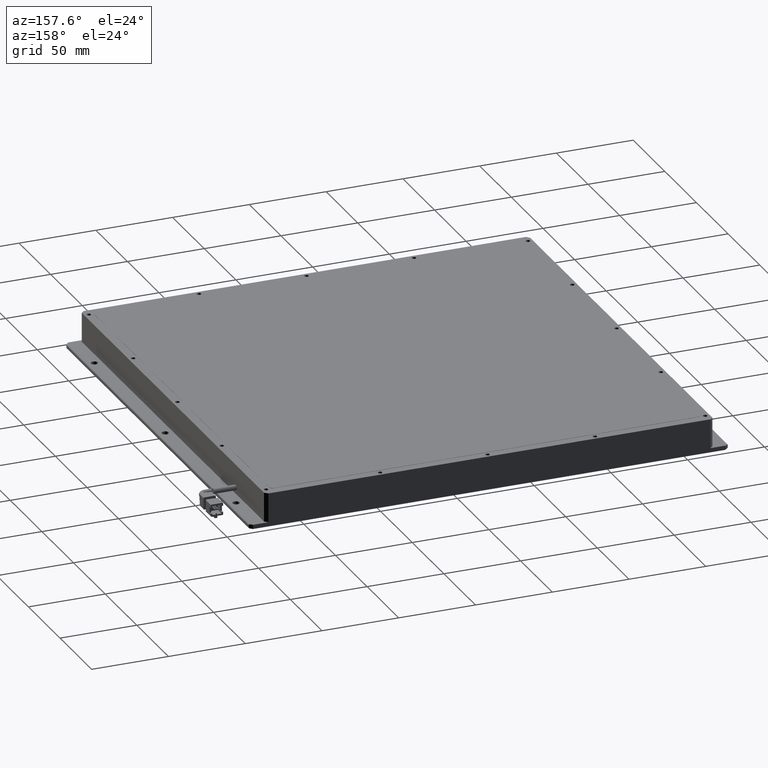
[diagram: clean part render]
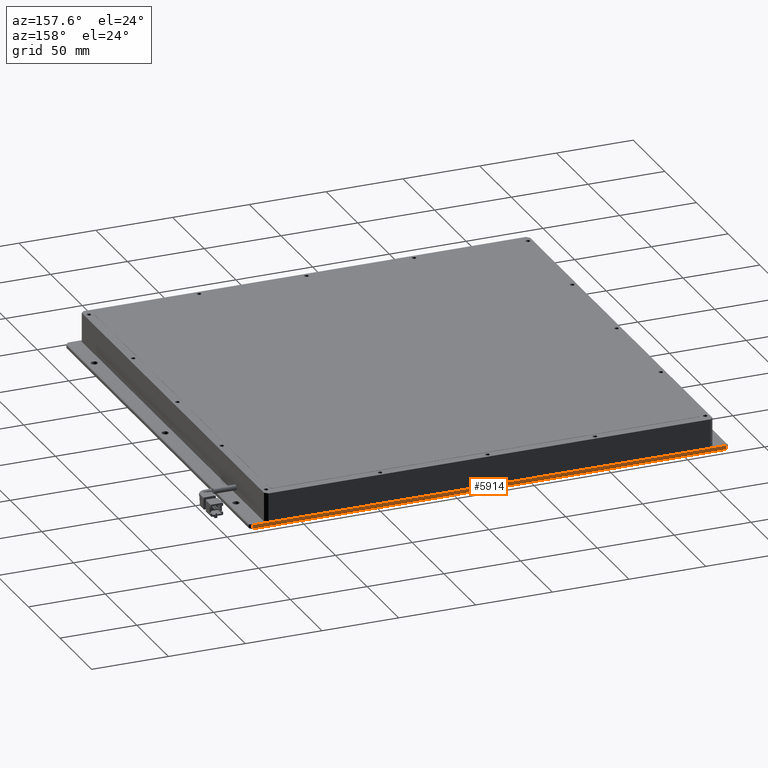
[diagram: same view with one face highlighted and labeled with its STEP entity id]
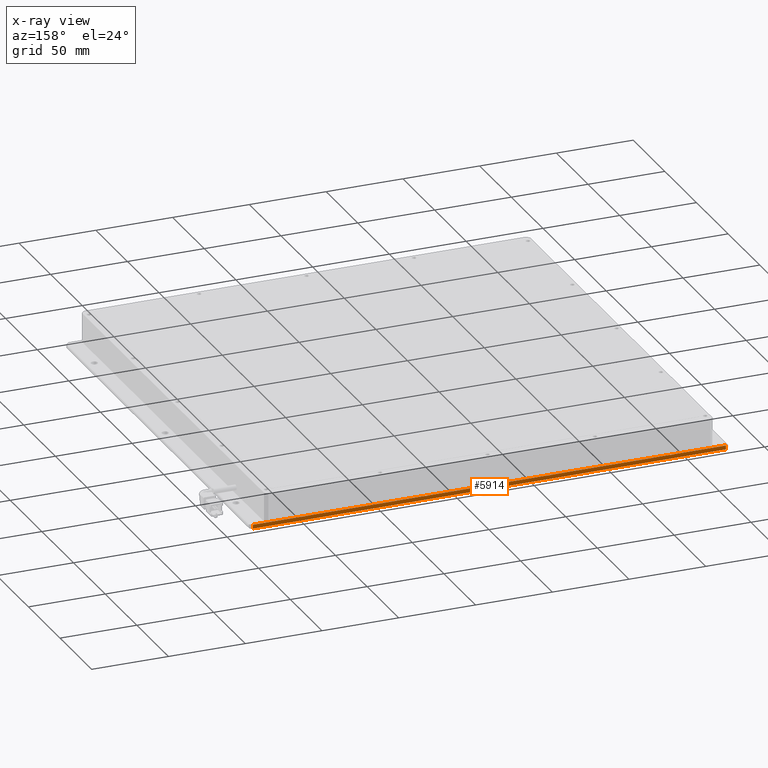
[diagram: x-ray of the same camera — body ghosted, the highlighted face saturated]
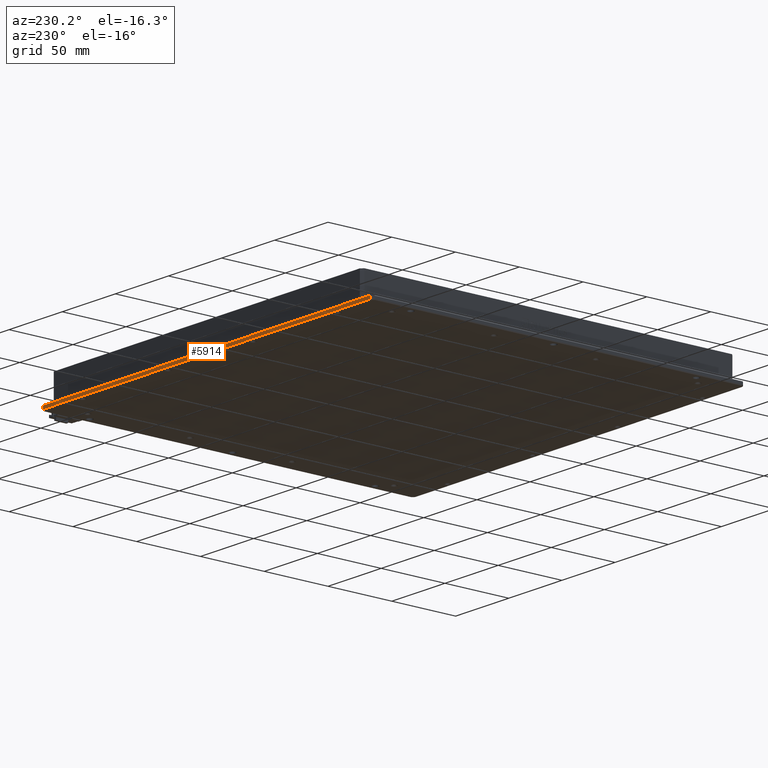
[diagram: same view with one face highlighted and labeled with its STEP entity id]
A machine part, auxiliary view. The second image highlights one B-rep face of the part: STEP entity #5914.
The next image is the same camera in x-ray: the body ghosted, the highlighted face saturated — about 0% of this face is hidden behind the body in this view.
A second angle (auxiliary view) of the same face is appended — the face is thin or edge-on in the first view.
In plain terms, the highlighted planar face has unit normal (0, -1, 0).
Its self-contained STEP definition (entity closure, byte-faithful):
#902 = EDGE_LOOP ( 'NONE', ( #8250, #27695, #26102, #16324 ) ) ;
#1004 = DIRECTION ( 'NONE',  ( 0.0000000000000000000, -0.0000000000000000000, -1.000000000000000000 ) ) ;
#1140 = DIRECTION ( 'NONE',  ( 1.000000000000000000, 0.0000000000000000000, 0.0000000000000000000 ) ) ;
#2302 = CARTESIAN_POINT ( 'NONE',  ( -121.0806771263419100, 159.2698045692266400, -11.00000000002819600 ) ) ;
#2877 = VECTOR ( 'NONE', #9304, 1000.000000000000000 ) ;
#3623 = PLANE ( 'NONE',  #24223 ) ;
#3955 = DIRECTION ( 'NONE',  ( 0.0000000000000000000, -1.000000000000000000, 0.0000000000000000000 ) ) ;
#4432 = LINE ( 'NONE', #24637, #21530 ) ;
#5470 = CARTESIAN_POINT ( 'NONE',  ( 186.9193228736580700, 159.2698045692266900, -8.500000000028196100 ) ) ;
#5914 = ADVANCED_FACE ( 'NONE', ( #20421 ), #3623, .F. ) ;
#7408 = CARTESIAN_POINT ( 'NONE',  ( -121.0806771263419100, 159.2698045692266400, -8.500000000028196100 ) ) ;
#8006 = LINE ( 'NONE', #24654, #27053 ) ;
#8250 = ORIENTED_EDGE ( 'NONE', *, *, #20537, .F. ) ;
#9304 = DIRECTION ( 'NONE',  ( 1.000000000000000000, -0.0000000000000000000, 0.0000000000000000000 ) ) ;
#9694 = EDGE_CURVE ( 'NONE', #15944, #19023, #8006, .T. ) ;
#10288 = CARTESIAN_POINT ( 'NONE',  ( -121.0806771263419100, 159.2698045692266400, -8.500000000028196100 ) ) ;
#11887 = DIRECTION ( 'NONE',  ( -0.0000000000000000000, -0.0000000000000000000, -1.000000000000000000 ) ) ;
#13714 = EDGE_CURVE ( 'NONE', #25749, #19023, #4432, .T. ) ;
#14399 = CARTESIAN_POINT ( 'NONE',  ( 186.9193228736582500, 159.2698045692266900, -11.00000000002819100 ) ) ;
#15054 = LINE ( 'NONE', #26411, #2877 ) ;
#15944 = VERTEX_POINT ( 'NONE', #5470 ) ;
#16324 = ORIENTED_EDGE ( 'NONE', *, *, #13714, .F. ) ;
#16851 = LINE ( 'NONE', #7408, #21756 ) ;
#17611 = VERTEX_POINT ( 'NONE', #10288 ) ;
#19023 = VERTEX_POINT ( 'NONE', #14399 ) ;
#20421 = FACE_OUTER_BOUND ( 'NONE', #902, .T. ) ;
#20537 = EDGE_CURVE ( 'NONE', #17611, #25749, #16851, .T. ) ;
#21530 = VECTOR ( 'NONE', #1140, 1000.000000000000000 ) ;
#21756 = VECTOR ( 'NONE', #1004, 1000.000000000000000 ) ;
#22951 = CARTESIAN_POINT ( 'NONE',  ( -123.0806771263419100, 159.2698045692266400, -8.500000000028196100 ) ) ;
#23489 = EDGE_CURVE ( 'NONE', #17611, #15944, #15054, .T. ) ;
#24223 = AXIS2_PLACEMENT_3D ( 'NONE', #22951, #3955, #27289 ) ;
#24637 = CARTESIAN_POINT ( 'NONE',  ( -123.0806771263419100, 159.2698045692266400, -11.00000000002819600 ) ) ;
#24654 = CARTESIAN_POINT ( 'NONE',  ( 186.9193228736580500, 159.2698045692266900, -8.500000000028196100 ) ) ;
#25749 = VERTEX_POINT ( 'NONE', #2302 ) ;
#26102 = ORIENTED_EDGE ( 'NONE', *, *, #9694, .T. ) ;
#26411 = CARTESIAN_POINT ( 'NONE',  ( -123.0806771263419100, 159.2698045692266400, -8.500000000028196100 ) ) ;
#27053 = VECTOR ( 'NONE', #11887, 1000.000000000000000 ) ;
#27289 = DIRECTION ( 'NONE',  ( 0.0000000000000000000, -0.0000000000000000000, -1.000000000000000000 ) ) ;
#27695 = ORIENTED_EDGE ( 'NONE', *, *, #23489, .T. ) ;